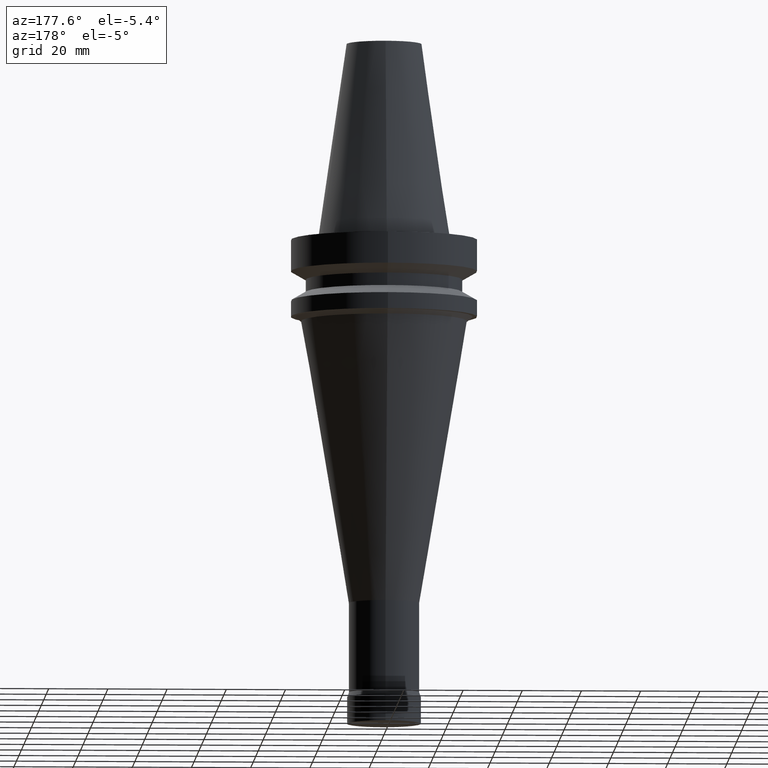
[diagram: clean part render]
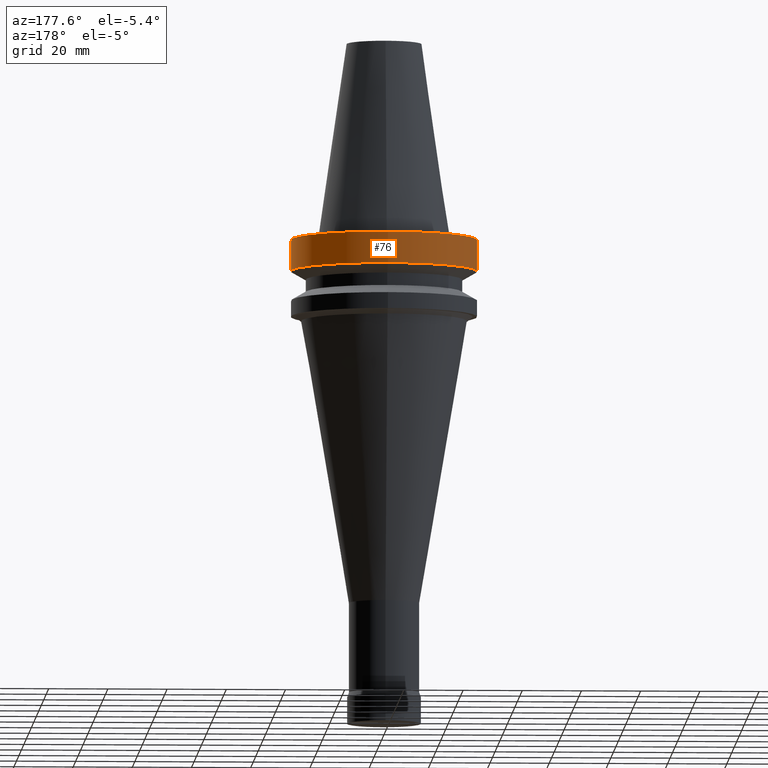
[diagram: same view with one face highlighted and labeled with its STEP entity id]
A machine part, auxiliary view. The second image highlights one B-rep face of the part: STEP entity #76.
In plain terms, the highlighted cylindrical surface (bore or boss wall) has radius 31.5 mm, axis along (-0, -0, 1).
Its self-contained STEP definition (entity closure, byte-faithful):
#76=ADVANCED_FACE('',(#95,#96),#97,.T.);
#95=FACE_BOUND('',#141,.T.);
#96=FACE_BOUND('',#142,.T.);
#97=CYLINDRICAL_SURFACE('',#143,31.5);
#141=EDGE_LOOP('',(#189));
#142=EDGE_LOOP('',(#190));
#143=AXIS2_PLACEMENT_3D('',#191,#192,#193);
#189=ORIENTED_EDGE('',*,*,#264,.F.);
#190=ORIENTED_EDGE('',*,*,#262,.T.);
#191=CARTESIAN_POINT('',(3.85763741731416E-016,7.71527483462832E-016,-6.3));
#192=DIRECTION('',(-6.12323399573677E-017,-1.22464679914735E-016,1.0));
#193=DIRECTION('',(-1.23259516440783E-032,1.0,1.22464679914735E-016));
#262=EDGE_CURVE('',#277,#277,#278,.T.);
#264=EDGE_CURVE('',#281,#281,#282,.T.);
#277=VERTEX_POINT('',#307);
#278=CIRCLE('',#308,31.5);
#281=VERTEX_POINT('',#311);
#282=CIRCLE('',#312,31.5);
#307=CARTESIAN_POINT('',(6.12323399573673E-017,31.5,-0.999999999999996));
#308=AXIS2_PLACEMENT_3D('',#337,#338,#339);
#311=CARTESIAN_POINT('',(7.10295143505464E-016,31.5,-11.6));
#312=AXIS2_PLACEMENT_3D('',#343,#344,#345);
#337=CARTESIAN_POINT('',(6.12323399573677E-017,1.22464679914735E-016,-1.0));
#338=DIRECTION('',(6.12323399573677E-017,1.22464679914735E-016,-1.0));
#339=DIRECTION('',(-1.23259516440783E-032,1.0,1.22464679914735E-016));
#343=CARTESIAN_POINT('',(7.10295143505465E-016,1.42059028701093E-015,-11.6));
#344=DIRECTION('',(6.12323399573677E-017,1.22464679914735E-016,-1.0));
#345=DIRECTION('',(-1.23259516440783E-032,1.0,1.22464679914735E-016));